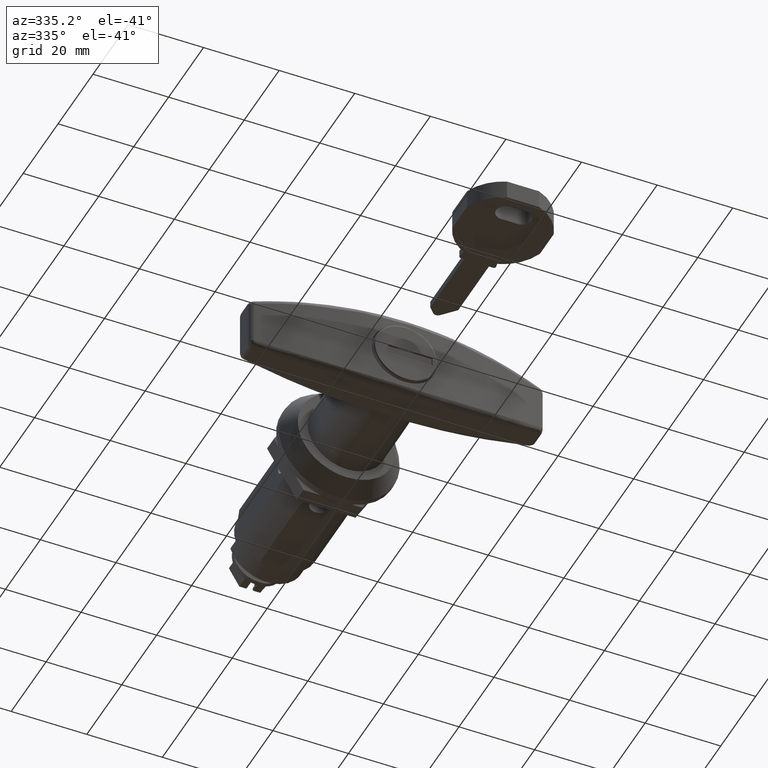
[diagram: clean part render]
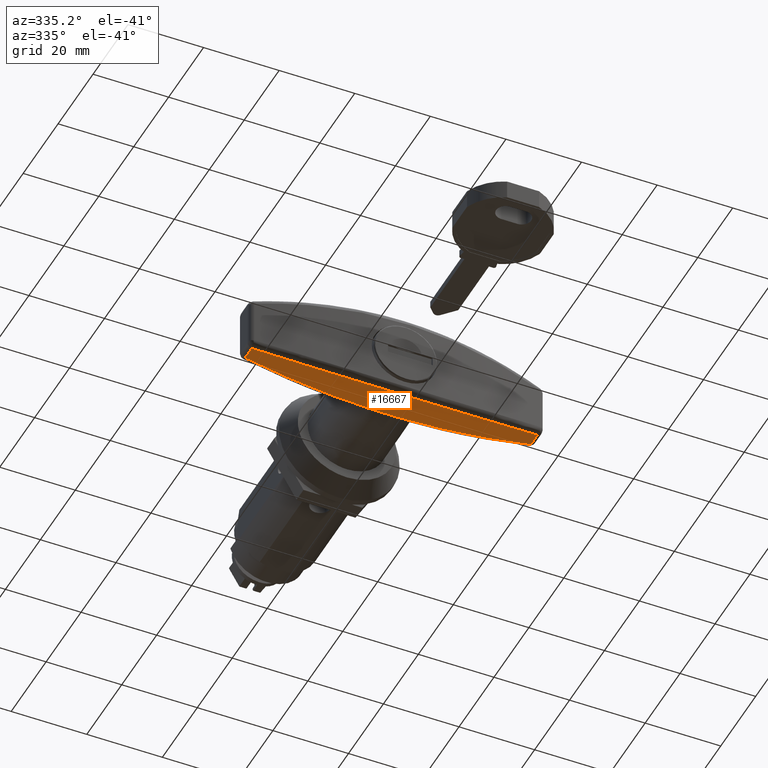
[diagram: same view with one face highlighted and labeled with its STEP entity id]
A machine part, auxiliary view. The second image highlights one B-rep face of the part: STEP entity #16667.
In plain terms, the highlighted face is a freeform B-spline surface patch.
Its self-contained STEP definition (entity closure, byte-faithful):
#13129=CARTESIAN_POINT('',(-32.996505361879699,37.831371514158000,-7.268951317470930));
#13130=VERTEX_POINT('',#13129);
#13258=CARTESIAN_POINT('',(-32.996505361879699,-37.831371514157851,-7.268951317470820));
#13259=VERTEX_POINT('',#13258);
#13303=CARTESIAN_POINT('',(-32.996505361879748,-37.831371514157851,-7.268951317470810));
#13304=CARTESIAN_POINT('',(-33.687881060059787,-34.754861600335992,-7.965809617840398));
#13305=CARTESIAN_POINT('',(-34.294535568483823,-31.661079631294619,-8.577282593255301));
#13306=CARTESIAN_POINT('',(-35.338286853927762,-25.438947009289539,-9.629331271201254));
#13307=CARTESIAN_POINT('',(-35.775385007555002,-22.310596638671640,-10.069908377785850));
#13308=CARTESIAN_POINT('',(-36.478339997083587,-16.018983235767600,-10.778461215083890));
#13309=CARTESIAN_POINT('',(-36.744200761099961,-12.855721005093400,-11.046440912451221));
#13310=CARTESIAN_POINT('',(-37.101352482848483,-6.493604827578092,-11.406439664806660));
#13311=CARTESIAN_POINT('',(-37.192650364729950,-3.294752292297819,-11.498465697623580));
#13312=CARTESIAN_POINT('',(-37.194457774184293,0.726712515815825,-11.500287519812240));
#13313=CARTESIAN_POINT('',(-37.189198772246797,1.532151399411507,-11.494986580795210));
#13314=CARTESIAN_POINT('',(-37.172804563931066,2.742043894437930,-11.478461643603961));
#13315=CARTESIAN_POINT('',(-37.165918823307237,3.145786275179841,-11.471520995896419));
#13316=CARTESIAN_POINT('',(-37.149314059342970,3.953127907759904,-11.454783827551260));
#13317=CARTESIAN_POINT('',(-37.100751704900901,5.969764983652851,-11.405834249608461));
#13318=CARTESIAN_POINT('',(-37.017111902662343,7.977859596443180,-11.321527566859800));
#13319=CARTESIAN_POINT('',(-36.750143797371159,12.781156998086260,-11.052431314001581));
#13320=CARTESIAN_POINT('',(-36.483911297946868,15.961862751427880,-10.784076899616259));
#13321=CARTESIAN_POINT('',(-35.779448171683399,22.281387931437219,-10.074003880706790));
#13322=CARTESIAN_POINT('',(-35.341211692549201,25.420205932234939,-9.632279371876223));
#13323=CARTESIAN_POINT('',(-34.295500357203473,31.656628560715038,-8.578255040895789));
#13324=CARTESIAN_POINT('',(-33.688022448799828,34.754232443335638,-7.965952127791791));
#13325=CARTESIAN_POINT('',(-32.996505361879741,37.831371514157972,-7.268951317470906));
#13326=B_SPLINE_CURVE_WITH_KNOTS('',3,(#13303,#13304,#13305,#13306,#13307,#13308,#13309,#13310,#13311,#13312,#13313,#13314,#13315,#13316,#13317,#13318,#13319,#13320,#13321,#13322,#13323,#13324,#13325),.UNSPECIFIED.,.F.,.U.,(4,2,2,2,2,2,2,1,2,2,2,4),(0.0,0.125000000000000,0.250000000000000,0.375000000000000,0.500000000000000,0.531250000000000,0.546875000000000,0.562500000000000,0.625000000000000,0.750000000000000,0.875000000000000,1.0),.UNSPECIFIED.);
#13327=EDGE_CURVE('',#13259,#13130,#13326,.T.);
#15523=CARTESIAN_POINT('',(-29.203311659179651,-37.831371514157851,-7.268951317470820));
#15524=VERTEX_POINT('',#15523);
#15672=CARTESIAN_POINT('',(-29.203311659179700,-2.982578289047300,-11.473965699011419));
#15673=VERTEX_POINT('',#15672);
#15701=CARTESIAN_POINT('',(-29.203311659179700,-2.982578289047300,-11.473965699011419));
#15702=CARTESIAN_POINT('',(-29.203311659179654,-20.623593803157373,-11.166674082787544));
#15703=CARTESIAN_POINT('',(-29.203311659179651,-37.831371514157851,-7.268951317470820));
#15711=(BOUNDED_CURVE()B_SPLINE_CURVE(2,(#15701,#15702,#15703),.UNSPECIFIED.,.F.,.U.)CURVE()GEOMETRIC_REPRESENTATION_ITEM()QUASI_UNIFORM_CURVE()RATIONAL_B_SPLINE_CURVE((1.0,0.994734411419382,1.0))REPRESENTATION_ITEM(''));
#15712=EDGE_CURVE('',#15673,#15524,#15711,.T.);
#15939=CARTESIAN_POINT('',(-29.203311659179651,2.982578289047255,-11.473965699011440));
#15940=VERTEX_POINT('',#15939);
#15956=CARTESIAN_POINT('',(-29.203311659179651,2.982578289047255,-11.473965699011440));
#15957=CARTESIAN_POINT('',(-29.203311659179651,2.733967386082465,-11.478296291324670));
#15958=CARTESIAN_POINT('',(-29.199024724145261,2.485430264958778,-11.482084047824950));
#15959=CARTESIAN_POINT('',(-29.187274197280381,1.988404825226928,-11.488576892997640));
#15960=CARTESIAN_POINT('',(-29.179811764574399,1.739916485271269,-11.491281966413039));
#15961=CARTESIAN_POINT('',(-29.165943566753551,1.242911133327006,-11.495610542890720));
#15962=CARTESIAN_POINT('',(-29.159551018137840,0.994393879289324,-11.497234029393770));
#15963=CARTESIAN_POINT('',(-29.150673972753740,0.497278506523108,-11.499399110479210));
#15964=CARTESIAN_POINT('',(-29.148201688804178,0.248680164059871,-11.499940681972340));
#15965=CARTESIAN_POINT('',(-29.148201280137219,-0.248616359787925,-11.499940774613631));
#15966=CARTESIAN_POINT('',(-29.150673297287959,-0.497227937969130,-11.499399265416590));
#15967=CARTESIAN_POINT('',(-29.159550087005989,-0.994354475919261,-11.497234266298291));
#15968=CARTESIAN_POINT('',(-29.165942640131380,-1.242876548776736,-11.495610800495999));
#15969=CARTESIAN_POINT('',(-29.179811014653620,-1.739890986085863,-11.491282232090670));
#15970=CARTESIAN_POINT('',(-29.187273622924550,-1.988383597082936,-11.488577146359940));
#15971=CARTESIAN_POINT('',(-29.199024518388899,-2.485418496011203,-11.482084225515450));
#15972=CARTESIAN_POINT('',(-29.203311659179700,-2.733960805457106,-11.478296405953600));
#15973=CARTESIAN_POINT('',(-29.203311659179700,-2.982578289047300,-11.473965699011419));
#15974=B_SPLINE_CURVE_WITH_KNOTS('',3,(#15956,#15957,#15958,#15959,#15960,#15961,#15962,#15963,#15964,#15965,#15966,#15967,#15968,#15969,#15970,#15971,#15972,#15973),.UNSPECIFIED.,.F.,.U.,(4,2,2,2,2,2,2,2,4),(0.0,0.125000000000000,0.250000000000000,0.375000000000000,0.500000000000000,0.625000000000000,0.750000000000000,0.875000000000000,1.0),.UNSPECIFIED.);
#15975=EDGE_CURVE('',#15940,#15673,#15974,.T.);
#16060=CARTESIAN_POINT('',(-29.203311659179651,37.831371514158000,-7.268951317470930));
#16061=VERTEX_POINT('',#16060);
#16107=CARTESIAN_POINT('',(-29.203311659179651,37.831371514158000,-7.268951317470930));
#16108=CARTESIAN_POINT('',(-29.203311659179654,20.623593803157590,-11.166674082787594));
#16109=CARTESIAN_POINT('',(-29.203311659179651,2.982578289047255,-11.473965699011440));
#16117=(BOUNDED_CURVE()B_SPLINE_CURVE(2,(#16107,#16108,#16109),.UNSPECIFIED.,.F.,.U.)CURVE()GEOMETRIC_REPRESENTATION_ITEM()QUASI_UNIFORM_CURVE()RATIONAL_B_SPLINE_CURVE((1.0,0.994734411419382,1.0))REPRESENTATION_ITEM(''));
#16118=EDGE_CURVE('',#16061,#15940,#16117,.T.);
#16318=CARTESIAN_POINT('',(-32.996505361879699,37.831371514158000,-7.268951317470930));
#16319=CARTESIAN_POINT('',(-29.203311659179651,37.831371514158000,-7.268951317470930));
#16320=QUASI_UNIFORM_CURVE('',1,(#16318,#16319),.UNSPECIFIED.,.F.,.U.);
#16321=EDGE_CURVE('',#13130,#16061,#16320,.T.);
#16382=CARTESIAN_POINT('',(-29.203311659179651,-37.831371514157851,-7.268951317470820));
#16383=CARTESIAN_POINT('',(-32.996505361879699,-37.831371514157851,-7.268951317470820));
#16384=QUASI_UNIFORM_CURVE('',1,(#16382,#16383),.UNSPECIFIED.,.F.,.U.);
#16385=EDGE_CURVE('',#15524,#13259,#16384,.T.);
#16645=CARTESIAN_POINT('',(-37.395261533253091,41.493719717249640,-6.396965399341203));
#16646=CARTESIAN_POINT('',(-28.942024983238184,41.493719717249640,-6.396965399341203));
#16647=CARTESIAN_POINT('',(-37.395261533253098,-0.010055167787615,-16.762158043551288));
#16648=CARTESIAN_POINT('',(-28.942024983238181,-0.010055167787615,-16.762158043551288));
#16649=CARTESIAN_POINT('',(-37.395261533253098,-41.512648859578945,-6.392236871550122));
#16650=CARTESIAN_POINT('',(-28.942024983238181,-41.512648859578945,-6.392236871550122));
#16658=(BOUNDED_SURFACE()B_SPLINE_SURFACE(1,2,((#16645,#16647,#16649),(#16646,#16648,#16650)),.UNSPECIFIED.,.F.,.F.,.U.)B_SPLINE_SURFACE_WITH_KNOTS((2,2),(3,3),(0.0,8.453236550014914),(2.177547209525108,86.450272328591353),.UNSPECIFIED.)GEOMETRIC_REPRESENTATION_ITEM()RATIONAL_B_SPLINE_SURFACE(((0.998287191041798,0.965910713564121,0.992903058358987),(0.998287191041798,0.965910713564121,0.992903058358987)))REPRESENTATION_ITEM('')SURFACE());
#16659=ORIENTED_EDGE('',*,*,#16385,.T.);
#16660=ORIENTED_EDGE('',*,*,#13327,.T.);
#16661=ORIENTED_EDGE('',*,*,#16321,.T.);
#16662=ORIENTED_EDGE('',*,*,#16118,.T.);
#16663=ORIENTED_EDGE('',*,*,#15975,.T.);
#16664=ORIENTED_EDGE('',*,*,#15712,.T.);
#16665=EDGE_LOOP('',(#16659,#16660,#16661,#16662,#16663,#16664));
#16666=FACE_OUTER_BOUND('',#16665,.T.);
#16667=ADVANCED_FACE('',(#16666),#16658,.T.);